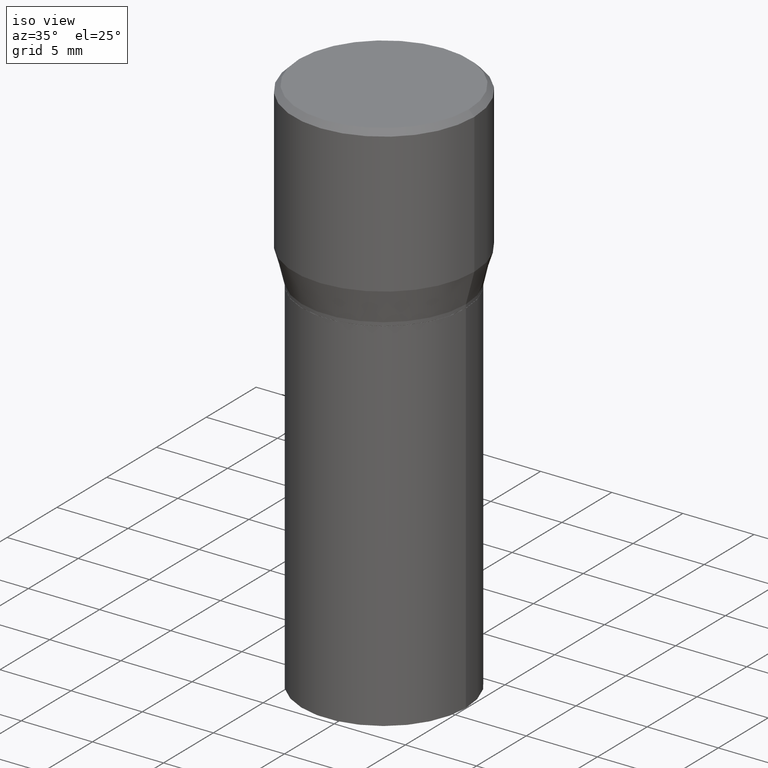
[diagram: clean part render]
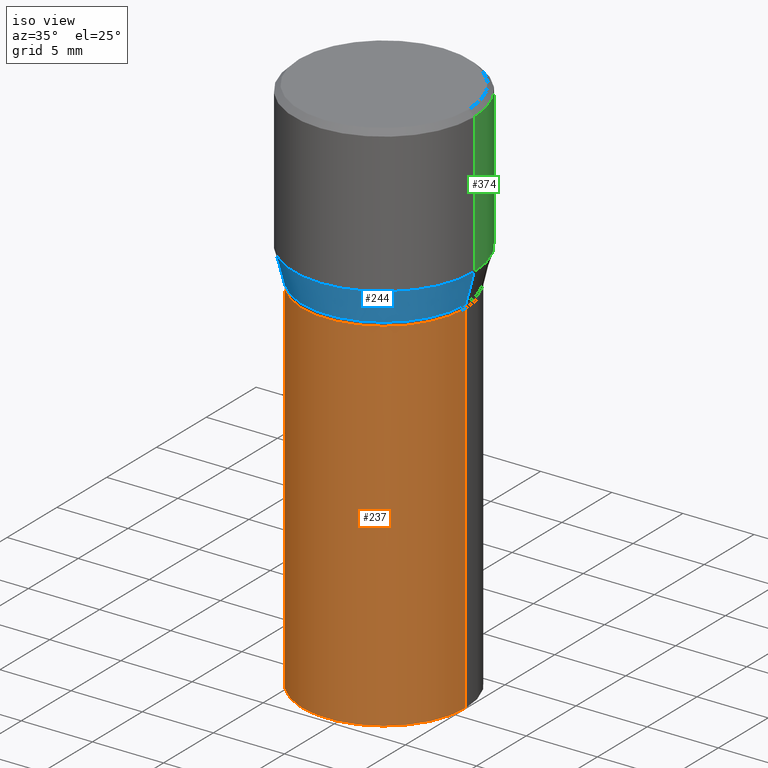
[diagram: same view with three faces highlighted in distinct colors, each labeled with its STEP entity id]
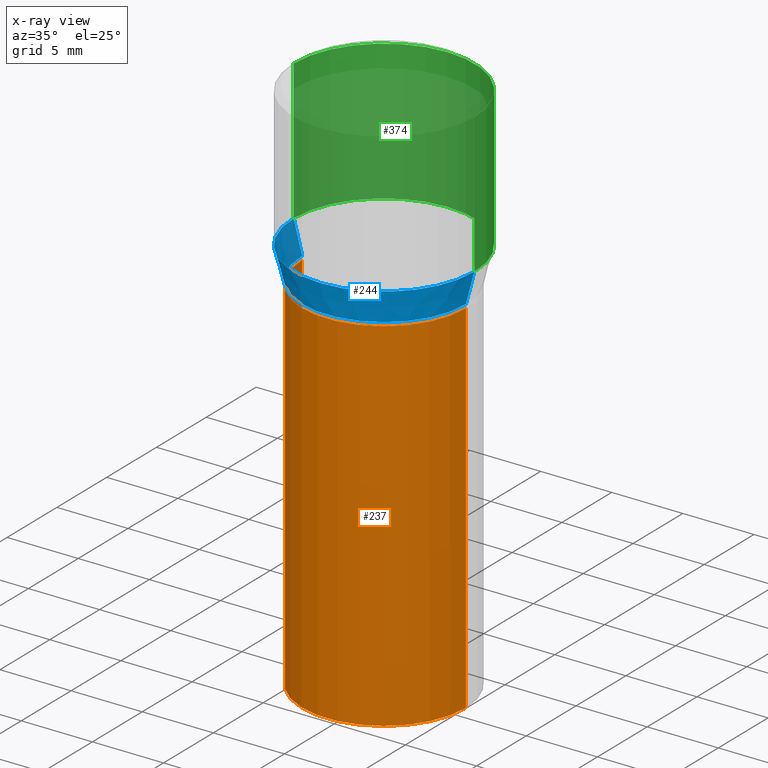
[diagram: x-ray of the same camera — body ghosted, the three highlighted faces saturated]
A machine part, iso view with three faces highlighted in distinct colors.
The next image is the same camera in x-ray (body ghosted, the three faces saturated) — at least one of them is partly hidden behind the body in this view.
Their STEP definitions:

[orange] entity #237 — the highlighted cylindrical surface (partial cylindrical patch) has radius 5.7544 mm, axis along (-0, 0, 1).
#12 = EDGE_CURVE ( 'NONE', #446, #365, #259, .T. ) ;
#21 = DIRECTION ( 'NONE',  ( -2.445468806185136597E-29, 3.491481338843145583E-15, 1.000000000000000000 ) ) ;
#26 = VECTOR ( 'NONE', #380, 39.37007874015748143 ) ;
#48 = VECTOR ( 'NONE', #240, 39.37007874015748143 ) ;
#73 = CARTESIAN_POINT ( 'NONE',  ( -0.2265500000000000014, -1.881746770978639193E-15, -0.5000000000000001110 ) ) ;
#111 = AXIS2_PLACEMENT_3D ( 'NONE', #219, #115, #435 ) ;
#115 = DIRECTION ( 'NONE',  ( -2.445468806185136597E-29, 3.491481338843145583E-15, 1.000000000000000000 ) ) ;
#132 = LINE ( 'NONE', #422, #26 ) ;
#141 = DIRECTION ( 'NONE',  ( 1.000000000000000000, -6.982962677686266711E-15, 4.876176775795935793E-29 ) ) ;
#150 = CARTESIAN_POINT ( 'NONE',  ( 0.000000000000000000, 0.000000000000000000, 0.000000000000000000 ) ) ;
#160 = VERTEX_POINT ( 'NONE', #73 ) ;
#164 = DIRECTION ( 'NONE',  ( 1.000000000000000000, -6.982962677686267499E-15, 0.000000000000000000 ) ) ;
#192 = EDGE_CURVE ( 'NONE', #160, #271, #321, .T. ) ;
#204 = LINE ( 'NONE', #384, #48 ) ;
#219 = CARTESIAN_POINT ( 'NONE',  ( 1.222734403092568719E-29, -1.745740669421573186E-15, -0.5000000000000001110 ) ) ;
#237 = ADVANCED_FACE ( 'NONE', ( #330 ), #300, .T. ) ;
#240 = DIRECTION ( 'NONE',  ( -2.445468806185136877E-29, 3.491481338843145188E-15, 1.000000000000000000 ) ) ;
#259 = CIRCLE ( 'NONE', #451, 0.2265500000000000014 ) ;
#270 = EDGE_CURVE ( 'NONE', #365, #271, #132, .T. ) ;
#271 = VERTEX_POINT ( 'NONE', #272 ) ;
#272 = CARTESIAN_POINT ( 'NONE',  ( 0.2265500000000000014, -3.327730864051397109E-15, -0.5000000000000001110 ) ) ;
#296 = ORIENTED_EDGE ( 'NONE', *, *, #12, .T. ) ;
#300 = CYLINDRICAL_SURFACE ( 'NONE', #305, 0.2265500000000000014 ) ;
#301 = DIRECTION ( 'NONE',  ( -2.445468806185136597E-29, 3.491481338843145583E-15, 1.000000000000000000 ) ) ;
#305 = AXIS2_PLACEMENT_3D ( 'NONE', #150, #301, #141 ) ;
#321 = CIRCLE ( 'NONE', #111, 0.2265500000000000014 ) ;
#330 = FACE_OUTER_BOUND ( 'NONE', #362, .T. ) ;
#335 = ORIENTED_EDGE ( 'NONE', *, *, #357, .F. ) ;
#349 = CARTESIAN_POINT ( 'NONE',  ( 0.2265500000000000014, -6.819212202894542298E-15, -1.500000000000000222 ) ) ;
#357 = EDGE_CURVE ( 'NONE', #446, #160, #204, .T. ) ;
#362 = EDGE_LOOP ( 'NONE', ( #335, #296, #415, #407 ) ) ;
#365 = VERTEX_POINT ( 'NONE', #349 ) ;
#379 = CARTESIAN_POINT ( 'NONE',  ( 3.668203209277704895E-29, -5.237222008264718177E-15, -1.500000000000000222 ) ) ;
#380 = DIRECTION ( 'NONE',  ( -2.445468806185136877E-29, 3.491481338843145188E-15, 1.000000000000000000 ) ) ;
#384 = CARTESIAN_POINT ( 'NONE',  ( -0.2265500000000000014, 1.609734567864506981E-15, -1.114384744697248863E-29 ) ) ;
#407 = ORIENTED_EDGE ( 'NONE', *, *, #192, .F. ) ;
#415 = ORIENTED_EDGE ( 'NONE', *, *, #270, .T. ) ;
#422 = CARTESIAN_POINT ( 'NONE',  ( 0.2265500000000000014, -1.581990194629823726E-15, 1.104697848556569281E-29 ) ) ;
#435 = DIRECTION ( 'NONE',  ( 1.000000000000000000, -6.982962677686266711E-15, 0.000000000000000000 ) ) ;
#438 = CARTESIAN_POINT ( 'NONE',  ( -0.2265500000000000014, -1.881746770978639193E-15, -1.500000000000000222 ) ) ;
#446 = VERTEX_POINT ( 'NONE', #438 ) ;
#451 = AXIS2_PLACEMENT_3D ( 'NONE', #379, #21, #164 ) ;

[blue] entity #244 — the highlighted conical surface has half-angle 15 deg.
#34 = DIRECTION ( 'NONE',  ( 1.000000000000000000, -6.982962677686265922E-15, 0.000000000000000000 ) ) ;
#68 = CIRCLE ( 'NONE', #453, 0.2265499999999999736 ) ;
#81 = VERTEX_POINT ( 'NONE', #200 ) ;
#86 = VERTEX_POINT ( 'NONE', #425 ) ;
#92 = CARTESIAN_POINT ( 'NONE',  ( -0.2265499999999999736, 1.350011205208151600E-16, -0.4900000000000001021 ) ) ;
#100 = AXIS2_PLACEMENT_3D ( 'NONE', #113, #401, #34 ) ;
#110 = DIRECTION ( 'NONE',  ( 0.2588190451025214611, 1.565188264969621573E-15, 0.9659258262890682012 ) ) ;
#113 = CARTESIAN_POINT ( 'NONE',  ( 9.842606206466859638E-30, -1.405263310189985589E-15, -0.4024834085625100810 ) ) ;
#126 = ORIENTED_EDGE ( 'NONE', *, *, #154, .F. ) ;
#142 = EDGE_CURVE ( 'NONE', #310, #81, #144, .T. ) ;
#144 = LINE ( 'NONE', #436, #243 ) ;
#147 = AXIS2_PLACEMENT_3D ( 'NONE', #427, #211, #175 ) ;
#154 = EDGE_CURVE ( 'NONE', #81, #431, #348, .T. ) ;
#172 = LINE ( 'NONE', #432, #235 ) ;
#175 = DIRECTION ( 'NONE',  ( 1.000000000000000000, -6.982962677686265922E-15, 0.000000000000000000 ) ) ;
#184 = EDGE_CURVE ( 'NONE', #86, #431, #172, .T. ) ;
#187 = CONICAL_SURFACE ( 'NONE', #147, 0.2265499999999999736, 0.2617993877991501295 ) ;
#200 = CARTESIAN_POINT ( 'NONE',  ( -0.2500000000000000000, 3.710935292102651716E-16, -0.4024834085625100810 ) ) ;
#211 = DIRECTION ( 'NONE',  ( -2.445468806185136597E-29, 3.491481338843145583E-15, 1.000000000000000000 ) ) ;
#220 = ORIENTED_EDGE ( 'NONE', *, *, #142, .F. ) ;
#232 = CARTESIAN_POINT ( 'NONE',  ( 1.198279715030717173E-29, -1.710825856033141537E-15, -0.4900000000000001021 ) ) ;
#235 = VECTOR ( 'NONE', #110, 39.37007874015747433 ) ;
#243 = VECTOR ( 'NONE', #360, 39.37007874015747433 ) ;
#244 = ADVANCED_FACE ( 'NONE', ( #291 ), #187, .T. ) ;
#281 = EDGE_CURVE ( 'NONE', #310, #86, #68, .T. ) ;
#283 = DIRECTION ( 'NONE',  ( 1.000000000000000000, -6.982962677686265922E-15, 0.000000000000000000 ) ) ;
#291 = FACE_OUTER_BOUND ( 'NONE', #413, .T. ) ;
#302 = ORIENTED_EDGE ( 'NONE', *, *, #184, .T. ) ;
#310 = VERTEX_POINT ( 'NONE', #92 ) ;
#323 = CARTESIAN_POINT ( 'NONE',  ( 0.2500000000000000000, -3.151003979611552069E-15, -0.4024834085625100810 ) ) ;
#332 = ORIENTED_EDGE ( 'NONE', *, *, #281, .T. ) ;
#345 = DIRECTION ( 'NONE',  ( -2.445468806185136597E-29, 3.491481338843145583E-15, 1.000000000000000000 ) ) ;
#348 = CIRCLE ( 'NONE', #100, 0.2500000000000000000 ) ;
#360 = DIRECTION ( 'NONE',  ( -0.2588190451025214611, 5.211531920934551042E-15, 0.9659258262890682012 ) ) ;
#401 = DIRECTION ( 'NONE',  ( -2.445468806185136597E-29, 3.491481338843145583E-15, 1.000000000000000000 ) ) ;
#413 = EDGE_LOOP ( 'NONE', ( #220, #332, #302, #126 ) ) ;
#425 = CARTESIAN_POINT ( 'NONE',  ( 0.2265499999999999736, -3.292816050662964671E-15, -0.4900000000000001021 ) ) ;
#427 = CARTESIAN_POINT ( 'NONE',  ( 1.198279715030717173E-29, -1.710825856033141537E-15, -0.4900000000000001021 ) ) ;
#431 = VERTEX_POINT ( 'NONE', #323 ) ;
#432 = CARTESIAN_POINT ( 'NONE',  ( 0.2265499999999999736, -3.292816050662964671E-15, -0.4900000000000001021 ) ) ;
#436 = CARTESIAN_POINT ( 'NONE',  ( -0.2265499999999999736, -1.010912881686348269E-16, -0.4900000000000001021 ) ) ;
#453 = AXIS2_PLACEMENT_3D ( 'NONE', #232, #345, #283 ) ;

[green] entity #374 — the highlighted cylindrical surface (partial cylindrical patch) has radius 6.35 mm, axis along (-0, 0, 1).
#25 = DIRECTION ( 'NONE',  ( 1.000000000000000000, -6.982962677686265922E-15, 0.000000000000000000 ) ) ;
#47 = CIRCLE ( 'NONE', #375, 0.2500000000000000000 ) ;
#54 = DIRECTION ( 'NONE',  ( 1.000000000000000000, -6.982962677686266711E-15, 0.000000000000000000 ) ) ;
#55 = EDGE_CURVE ( 'NONE', #431, #81, #47, .T. ) ;
#57 = DIRECTION ( 'NONE',  ( -2.445468806185136597E-29, 3.491481338843145583E-15, 1.000000000000000000 ) ) ;
#58 = VECTOR ( 'NONE', #418, 39.37007874015748143 ) ;
#70 = VERTEX_POINT ( 'NONE', #352 ) ;
#77 = CIRCLE ( 'NONE', #316, 0.2500000000000000000 ) ;
#80 = ORIENTED_EDGE ( 'NONE', *, *, #361, .F. ) ;
#81 = VERTEX_POINT ( 'NONE', #200 ) ;
#102 = LINE ( 'NONE', #274, #58 ) ;
#103 = CARTESIAN_POINT ( 'NONE',  ( -0.2500000000000000000, 1.047539074263934229E-15, -0.01499999999999999944 ) ) ;
#114 = EDGE_CURVE ( 'NONE', #81, #185, #102, .T. ) ;
#138 = DIRECTION ( 'NONE',  ( -2.445468806185136597E-29, 3.491481338843145583E-15, 1.000000000000000000 ) ) ;
#168 = FACE_OUTER_BOUND ( 'NONE', #191, .T. ) ;
#176 = CARTESIAN_POINT ( 'NONE',  ( 0.000000000000000000, 0.000000000000000000, 0.000000000000000000 ) ) ;
#183 = ORIENTED_EDGE ( 'NONE', *, *, #388, .F. ) ;
#185 = VERTEX_POINT ( 'NONE', #103 ) ;
#191 = EDGE_LOOP ( 'NONE', ( #443, #269, #80, #183 ) ) ;
#195 = VECTOR ( 'NONE', #466, 39.37007874015748143 ) ;
#200 = CARTESIAN_POINT ( 'NONE',  ( -0.2500000000000000000, 3.710935292102651716E-16, -0.4024834085625100810 ) ) ;
#222 = LINE ( 'NONE', #396, #195 ) ;
#255 = CYLINDRICAL_SURFACE ( 'NONE', #260, 0.2500000000000000000 ) ;
#260 = AXIS2_PLACEMENT_3D ( 'NONE', #176, #367, #325 ) ;
#269 = ORIENTED_EDGE ( 'NONE', *, *, #114, .T. ) ;
#274 = CARTESIAN_POINT ( 'NONE',  ( -0.2500000000000000000, 1.776356839400250465E-15, -1.229733772563726445E-29 ) ) ;
#289 = CARTESIAN_POINT ( 'NONE',  ( 9.842606206466859638E-30, -1.405263310189985589E-15, -0.4024834085625100810 ) ) ;
#316 = AXIS2_PLACEMENT_3D ( 'NONE', #387, #57, #54 ) ;
#323 = CARTESIAN_POINT ( 'NONE',  ( 0.2500000000000000000, -3.151003979611552069E-15, -0.4024834085625100810 ) ) ;
#325 = DIRECTION ( 'NONE',  ( 1.000000000000000000, -6.982962677686266711E-15, 4.876176775795935793E-29 ) ) ;
#352 = CARTESIAN_POINT ( 'NONE',  ( 0.2500000000000000000, -1.798112889504214151E-15, -0.01499999999999999944 ) ) ;
#361 = EDGE_CURVE ( 'NONE', #70, #185, #77, .T. ) ;
#367 = DIRECTION ( 'NONE',  ( -2.445468806185136597E-29, 3.491481338843145583E-15, 1.000000000000000000 ) ) ;
#374 = ADVANCED_FACE ( 'NONE', ( #168 ), #255, .T. ) ;
#375 = AXIS2_PLACEMENT_3D ( 'NONE', #289, #138, #25 ) ;
#387 = CARTESIAN_POINT ( 'NONE',  ( 3.668203209277705088E-31, -5.237222008264718399E-17, -0.01499999999999999944 ) ) ;
#388 = EDGE_CURVE ( 'NONE', #431, #70, #222, .T. ) ;
#396 = CARTESIAN_POINT ( 'NONE',  ( 0.2500000000000000000, -1.745740669421566678E-15, 1.219044193948983948E-29 ) ) ;
#418 = DIRECTION ( 'NONE',  ( -2.445468806185136877E-29, 3.491481338843145188E-15, 1.000000000000000000 ) ) ;
#431 = VERTEX_POINT ( 'NONE', #323 ) ;
#443 = ORIENTED_EDGE ( 'NONE', *, *, #55, .T. ) ;
#466 = DIRECTION ( 'NONE',  ( -2.445468806185136877E-29, 3.491481338843145188E-15, 1.000000000000000000 ) ) ;